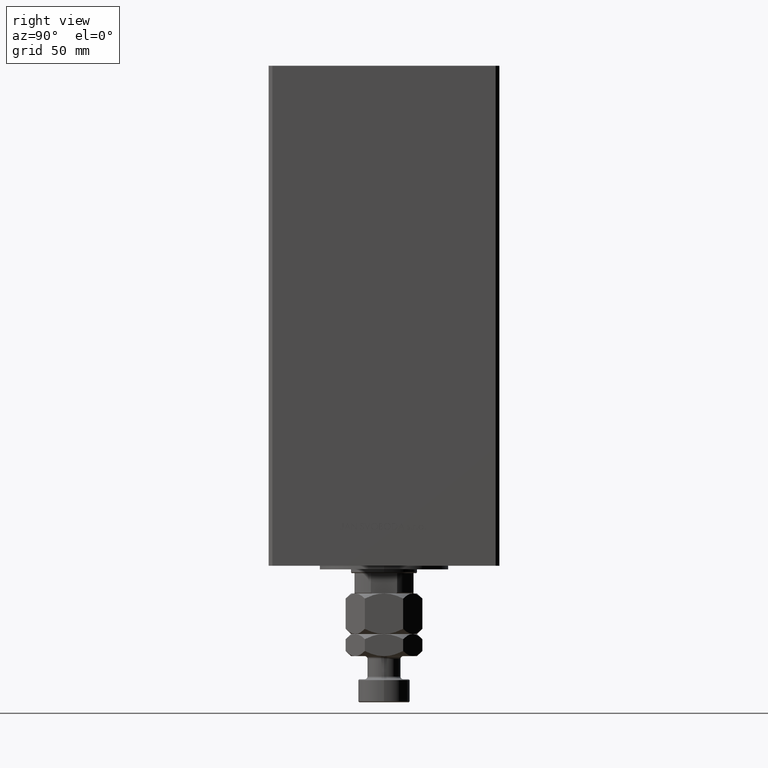
[diagram: clean part render]
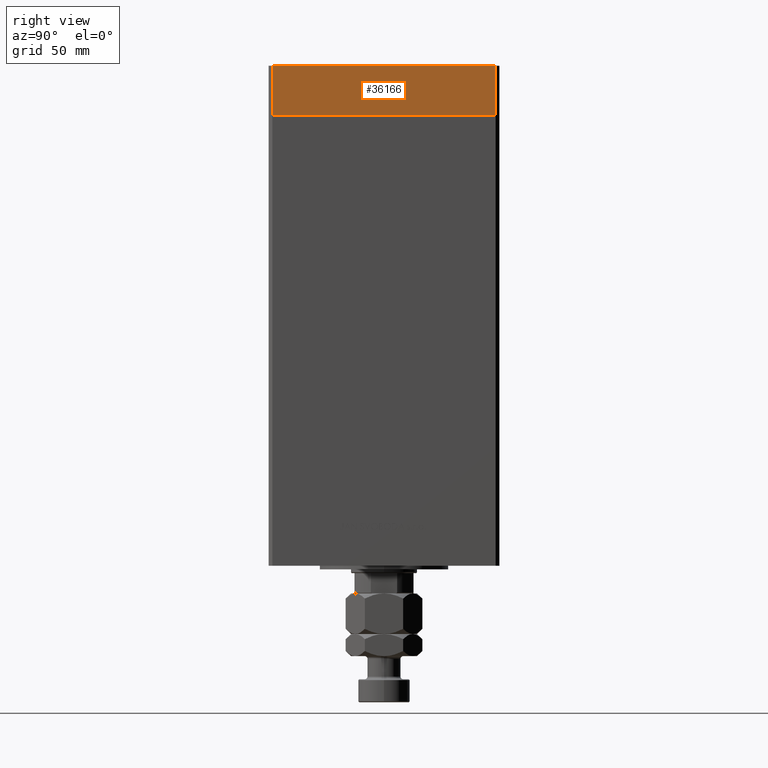
[diagram: same view with one face highlighted and labeled with its STEP entity id]
A machine part, right view. The second image highlights one B-rep face of the part: STEP entity #36166.
In plain terms, the highlighted planar face has unit normal (1, 0, 0).
Its self-contained STEP definition (entity closure, byte-faithful):
#935 = VECTOR ( 'NONE', #17706, 1000.000000000000000 ) ;
#1244 = LINE ( 'NONE', #39670, #5069 ) ;
#1262 = CARTESIAN_POINT ( 'NONE',  ( 75.00000000000001421, -60.50000000000000711, 0.000000000000000000 ) ) ;
#1339 = LINE ( 'NONE', #28979, #935 ) ;
#1438 = EDGE_LOOP ( 'NONE', ( #47080, #37116, #13006, #18776 ) ) ;
#3330 = EDGE_CURVE ( 'NONE', #35485, #42526, #1339, .T. ) ;
#4516 = FACE_OUTER_BOUND ( 'NONE', #1438, .T. ) ;
#5069 = VECTOR ( 'NONE', #13272, 1000.000000000000000 ) ;
#5926 = LINE ( 'NONE', #29460, #8356 ) ;
#8356 = VECTOR ( 'NONE', #24879, 1000.000000000000000 ) ;
#13006 = ORIENTED_EDGE ( 'NONE', *, *, #43565, .T. ) ;
#13272 = DIRECTION ( 'NONE',  ( 0.000000000000000000, 0.000000000000000000, 1.000000000000000000 ) ) ;
#16508 = VERTEX_POINT ( 'NONE', #21864 ) ;
#17706 = DIRECTION ( 'NONE',  ( -6.881547673296424104E-16, 1.000000000000000000, 0.000000000000000000 ) ) ;
#18776 = ORIENTED_EDGE ( 'NONE', *, *, #20440, .T. ) ;
#20132 = CARTESIAN_POINT ( 'NONE',  ( 75.00000000000001421, -60.50000000000000711, -27.00000000000000000 ) ) ;
#20136 = LINE ( 'NONE', #43430, #23753 ) ;
#20440 = EDGE_CURVE ( 'NONE', #16508, #42526, #1244, .T. ) ;
#21675 = EDGE_CURVE ( 'NONE', #50120, #35485, #5926, .T. ) ;
#21864 = CARTESIAN_POINT ( 'NONE',  ( 74.99999999999992895, 60.50000000000002842, -27.00000000000000000 ) ) ;
#23211 = PLANE ( 'NONE',  #33244 ) ;
#23463 = DIRECTION ( 'NONE',  ( -6.881547673296424104E-16, 1.000000000000000000, 0.000000000000000000 ) ) ;
#23753 = VECTOR ( 'NONE', #35504, 1000.000000000000000 ) ;
#24879 = DIRECTION ( 'NONE',  ( 0.000000000000000000, 0.000000000000000000, 1.000000000000000000 ) ) ;
#28979 = CARTESIAN_POINT ( 'NONE',  ( 75.00000000000001421, -60.50000000000000711, 0.000000000000000000 ) ) ;
#29460 = CARTESIAN_POINT ( 'NONE',  ( 75.00000000000001421, -60.50000000000000711, -27.00000000000000000 ) ) ;
#33244 = AXIS2_PLACEMENT_3D ( 'NONE', #20132, #39592, #23463 ) ;
#35485 = VERTEX_POINT ( 'NONE', #1262 ) ;
#35504 = DIRECTION ( 'NONE',  ( -6.881547673296424104E-16, 1.000000000000000000, 0.000000000000000000 ) ) ;
#36166 = ADVANCED_FACE ( 'NONE', ( #4516 ), #23211, .T. ) ;
#37116 = ORIENTED_EDGE ( 'NONE', *, *, #21675, .F. ) ;
#39592 = DIRECTION ( 'NONE',  ( 1.000000000000000000, 6.881547673296424104E-16, -0.000000000000000000 ) ) ;
#39670 = CARTESIAN_POINT ( 'NONE',  ( 74.99999999999992895, 60.50000000000002842, -27.00000000000000000 ) ) ;
#42526 = VERTEX_POINT ( 'NONE', #48092 ) ;
#43415 = CARTESIAN_POINT ( 'NONE',  ( 75.00000000000001421, -60.50000000000000711, -27.00000000000000000 ) ) ;
#43430 = CARTESIAN_POINT ( 'NONE',  ( 75.00000000000001421, -60.50000000000000711, -27.00000000000000000 ) ) ;
#43565 = EDGE_CURVE ( 'NONE', #50120, #16508, #20136, .T. ) ;
#47080 = ORIENTED_EDGE ( 'NONE', *, *, #3330, .F. ) ;
#48092 = CARTESIAN_POINT ( 'NONE',  ( 74.99999999999992895, 60.50000000000002842, 0.000000000000000000 ) ) ;
#50120 = VERTEX_POINT ( 'NONE', #43415 ) ;